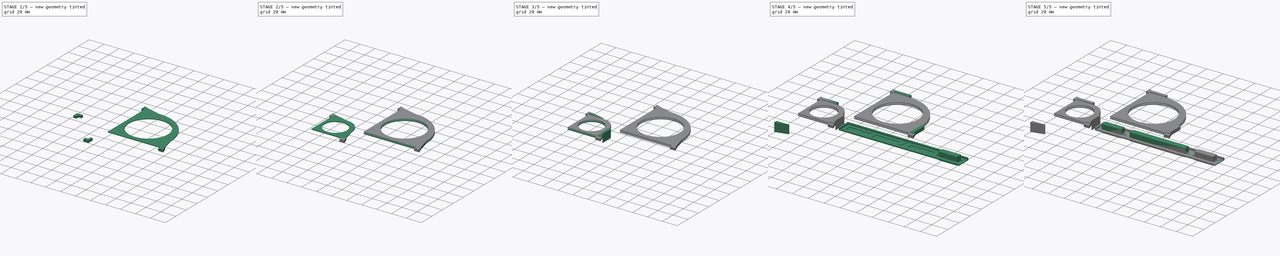
[diagram: build sequence overview — one tinted view per stage of 5, left to right]
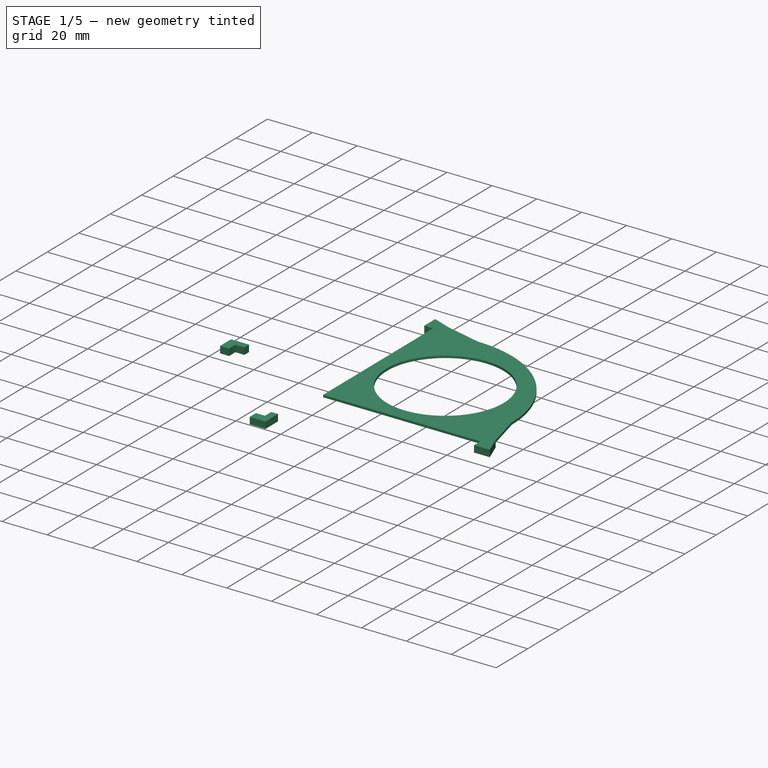
[diagram: stage 1 of 5 — iso view after this stage's code; geometry added in this stage tinted green]
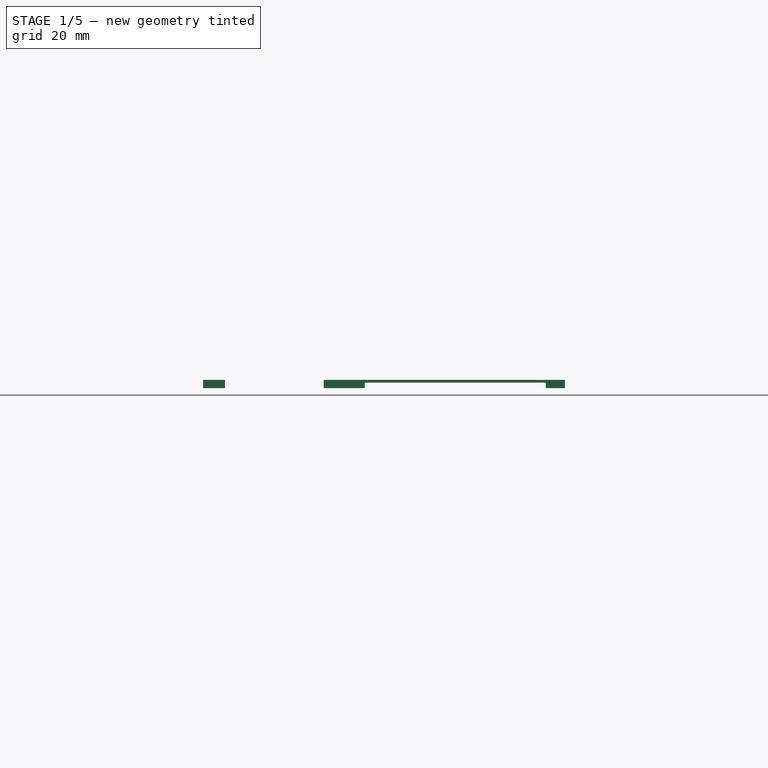
[diagram: stage 1 of 5 — front view after this stage's code; geometry added in this stage tinted green]
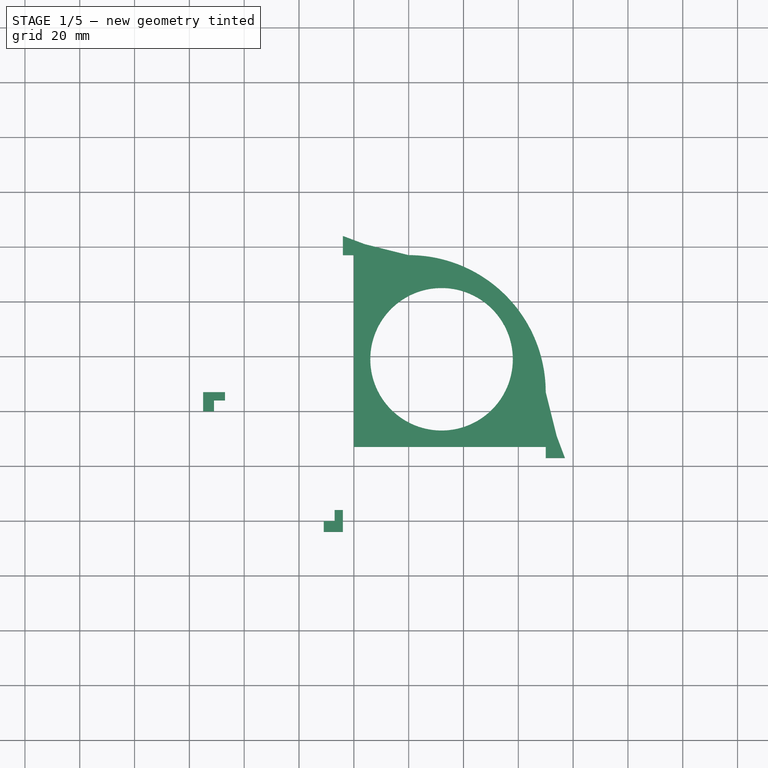
[diagram: stage 1 of 5 — top view after this stage's code; geometry added in this stage tinted green]
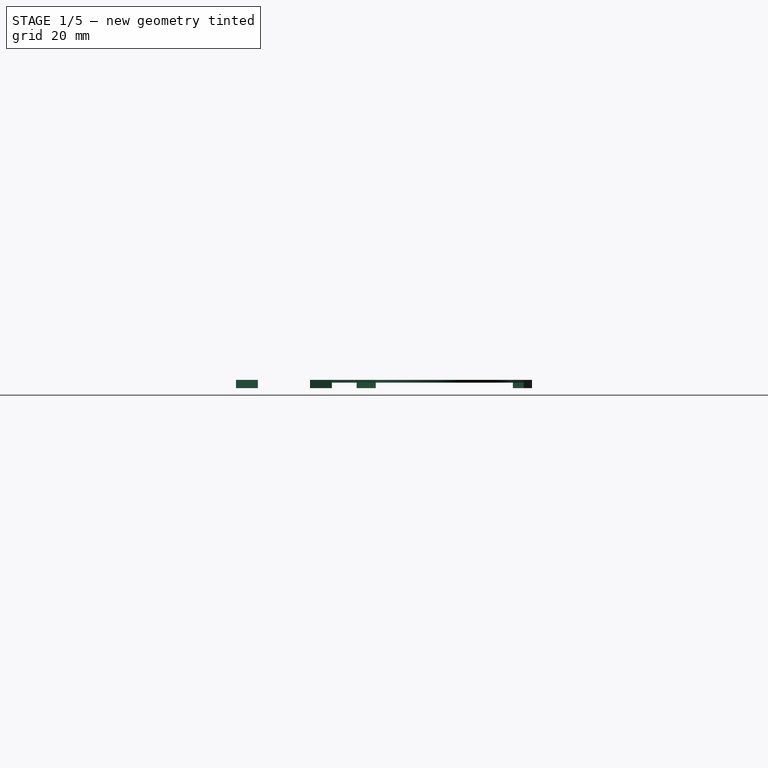
[diagram: stage 1 of 5 — right view after this stage's code; geometry added in this stage tinted green]
FCSTD DOCUMENT  (FreeCAD 0.18R4 (GitTag))
Label: marcador_cortes_vincha
License: CreativeCommons Attribution-ShareAlike
LicenseURL: http://creativecommons.org/licenses/by-sa/4.0/
objects: Part::Cut×55, Part::Box×51, Sketcher::SketchObject×18, Part::Extrusion×18, Part::MultiFuse×10, Part::Feature×10, Part::Cylinder×10
note: 172 computed .brp shape members not serialized (recipe doc carries the construction recipe); baked Part::Feature solids carry a one-line shape summary decoded from their .brp

FEATURE [Part::Box] Box041  label="Cube041"
  AttacherType = Attacher::AttachEngine3D
  Height = 3
  Length = 3
  Placement = pos=(-7,0,2) rot=(0,0,1;0rad)
  Width = 4
FEATURE [Part::Box] Box042  label="Cube042"
  AttacherType = Attacher::AttachEngine3D
  Height = 3
  Length = 7
  Placement = pos=(-11,-4,2) rot=(0,0,1;0rad)
  Width = 4
FEATURE [Part::Box] Box043  label="Cube043"
  AttacherType = Attacher::AttachEngine3D
  Height = 3
  Length = 7
  Placement = pos=(-11,-4,2) rot=(0,0,1;0rad)
  Width = 4
FEATURE [Part::Box] Box044  label="Cube044"
  AttacherType = Attacher::AttachEngine3D
  Height = 3
  Length = 3
  Placement = pos=(-7,0,2) rot=(0,0,1;0rad)
  Width = 4
FEATURE [Part::MultiFuse] Fusion004
  Placement = pos=(-51,51,7) rot=(0.707107,0.707107,0;3.14159rad)
  Shapes = -> [Box044,Box043]
FEATURE [Part::Feature] Big_Corner001_solid003  label="Big_Corner001 (Solid)003"
  shape: bbox 74 x 74 x 6 mm, 67 faces (baked)
FEATURE [Part::Cylinder] Cylinder009
  Angle = 360
  AttacherType = Attacher::AttachEngine3D
  Height = 10
  Placement = pos=(32,32,0) rot=(0,0,1;0rad)
  Radius = 26
FEATURE [Part::Box] Box046  label="Cube046"
  AttacherType = Attacher::AttachEngine3D
  Height = 2
  Length = 92
  Width = 89
FEATURE [Part::Cut] Cut046
  Base = -> Big_Corner001_solid003
  Tool = -> Cylinder009
FEATURE [Part::Cut] Cut047  label="esquina_grande002"
  Base = -> Cut046
  Placement = pos=(0,27,0) rot=(0,0,1;0rad)
  Tool = -> Box046
FEATURE [Part::Box] Box047  label="Cube047"
  AttacherType = Attacher::AttachEngine3D
  Height = 10
  Length = 80
  Placement = pos=(0,0,4) rot=(0,0,1;0rad)
  Width = 112
FEATURE [Sketcher::SketchObject] Sketch015
  ExternalGeometry = -> [Cut047]
  MapMode = 5
  Placement = pos=(0,27,6) rot=(0,0,1;0rad)
  Support = -> [Cut047]
  sketch-geometry (3):
    g0: LineSegment StartX=70 StartY=20 StartZ=0 EndX=74 EndY=20 EndZ=0
    g1: LineSegment StartX=74 StartY=20 StartZ=0 EndX=74 EndY=4 EndZ=0
    g2: LineSegment StartX=74 StartY=4 StartZ=0 EndX=70 EndY=20 EndZ=0
  constraints (8):
    c: Horizontal(g0)
    c: Coincident(g0,g1)
    c: Vertical(g1)
    c: Coincident(g1,g2)
    c: Coincident(g2,g0)
    c: Coincident(g0,g-3)
    c: DistanceY(g-4,g1) = 4
    c: PointOnObject(g1,g-4)
FEATURE [Part::Extrusion] Extrude012
  Base = -> Sketch015
  Dir = (0,0,1)
  DirMode = 2
  FaceMakerClass = Part::FaceMakerBullseye
  LengthFwd = -10
  LengthRev = 0
  Solid = true
  Symmetric = false
FEATURE [Part::Cut] Cut049
  Base = -> Cut047
  Tool = -> Extrude012
FEATURE [Sketcher::SketchObject] Sketch016
  ExternalGeometry = -> [Cut047]
  MapMode = 5
  Placement = pos=(0,27,6) rot=(0,0,1;0rad)
  Support = -> [Cut047]
  sketch-geometry (3):
    g0: LineSegment StartX=20 StartY=70 StartZ=0 EndX=20 EndY=74 EndZ=0
    g1: LineSegment StartX=20 StartY=74 StartZ=0 EndX=4 EndY=74 EndZ=0
    g2: LineSegment StartX=4 StartY=74 StartZ=0 EndX=20 EndY=70 EndZ=0
  constraints (8):
    c: Vertical(g0)
    c: Coincident(g0,g1)
    c: Horizontal(g1)
    c: Coincident(g1,g2)
    c: Coincident(g2,g0)
    c: Coincident(g0,g-3)
    c: DistanceX(g-4,g1) = 4
    c: PointOnObject(g1,g-4)
FEATURE [Part::Extrusion] Extrude013
  Base = -> Sketch016
  Dir = (0,0,1)
  DirMode = 2
  FaceMakerClass = Part::FaceMakerBullseye
  LengthFwd = -10
  LengthRev = 0
  Solid = true
  Symmetric = false
FEATURE [Part::Cut] Cut045
  Base = -> Cut049
  Tool = -> Extrude013
FEATURE [Part::Cut] Cut048  label="corte_grande_tapa001"
  Base = -> Cut045
  Placement = pos=(0,0,2) rot=(0,0,1;0rad)
  Tool = -> Box047
FEATURE [Part::Box] Box048  label="Cube048"
  AttacherType = Attacher::AttachEngine3D
  Height = 10
  Length = 95
  Placement = pos=(0,0,5) rot=(0,0,1;0rad)
  Width = 149
FEATURE [Part::Cut] Cut050
  Base = -> Cut048
  Tool = -> Box048
FEATURE [Part::Box] Box049  label="Cube049"
  AttacherType = Attacher::AttachEngine3D
  Height = 3
  Length = 7
  Placement = pos=(-11,-4,2) rot=(0,0,1;0rad)
  Width = 4
FEATURE [Part::Box] Box050  label="Cube050"
  AttacherType = Attacher::AttachEngine3D
  Height = 3
  Length = 3
  Placement = pos=(-7,0,2) rot=(0,0,1;0rad)
  Width = 4
FEATURE [Part::MultiFuse] Fusion006
  Placement = pos=(0,108,7) rot=(0.707107,0.707107,0;3.14159rad)
  Shapes = -> [Box050,Box049]
FEATURE [Part::Box] Box051  label="Cube051"
  AttacherType = Attacher::AttachEngine3D
  Height = 3
  Length = 7
  Placement = pos=(-11,-4,2) rot=(0,0,1;0rad)
  Width = 4
FEATURE [Part::Box] Box052  label="Cube052"
  AttacherType = Attacher::AttachEngine3D
  Height = 3
  Length = 3
  Placement = pos=(-7,0,2) rot=(0,0,1;0rad)
  Width = 4
FEATURE [Part::MultiFuse] Fusion007
  Placement = pos=(81,27,0) rot=(0,0,1;0rad)
  Shapes = -> [Box052,Box051]
FEATURE [Part::MultiFuse] Fusion008
  Shapes = -> [Cut050,Fusion006]
FEATURE [Part::MultiFuse] Fusion009  label="corte_grande_tapa"
  Shapes = -> [Fusion008,Fusion007]
FEATURE [Part::Extrusion] Extrude017
  Base = -> Sketch020
  Dir = (0,0,1)
  DirMode = 2
  FaceMakerClass = Part::FaceMakerBullseye
  LengthFwd = -10
  LengthRev = 0
  Solid = true
  Symmetric = false
FEATURE [Part::Cut] Cut053
  Base = -> Fusion009
  Tool = -> Extrude017
FEATURE [Part::Extrusion] Extrude018
  Base = -> Sketch019
  Dir = (0,0,1)
  DirMode = 2
  FaceMakerClass = Part::FaceMakerBullseye
  LengthFwd = -10
  LengthRev = 0
  Solid = true
  Symmetric = false
FEATURE [Part::Cut] Cut054  label="corte_grande_tapa_1"
  Base = -> Cut053
  Tool = -> Extrude018
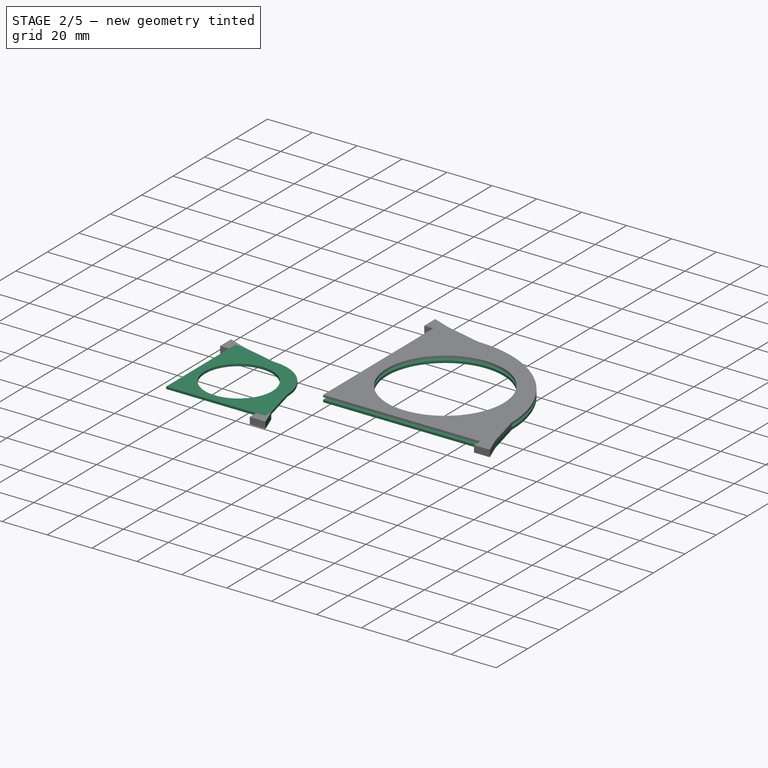
[diagram: stage 2 of 5 — iso view after this stage's code; geometry added in this stage tinted green]
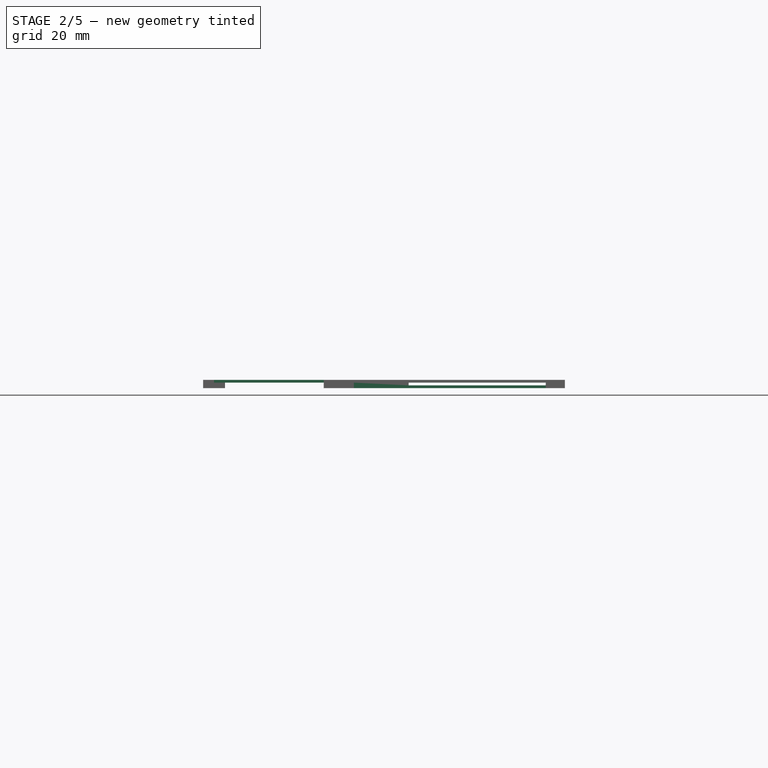
[diagram: stage 2 of 5 — front view after this stage's code; geometry added in this stage tinted green]
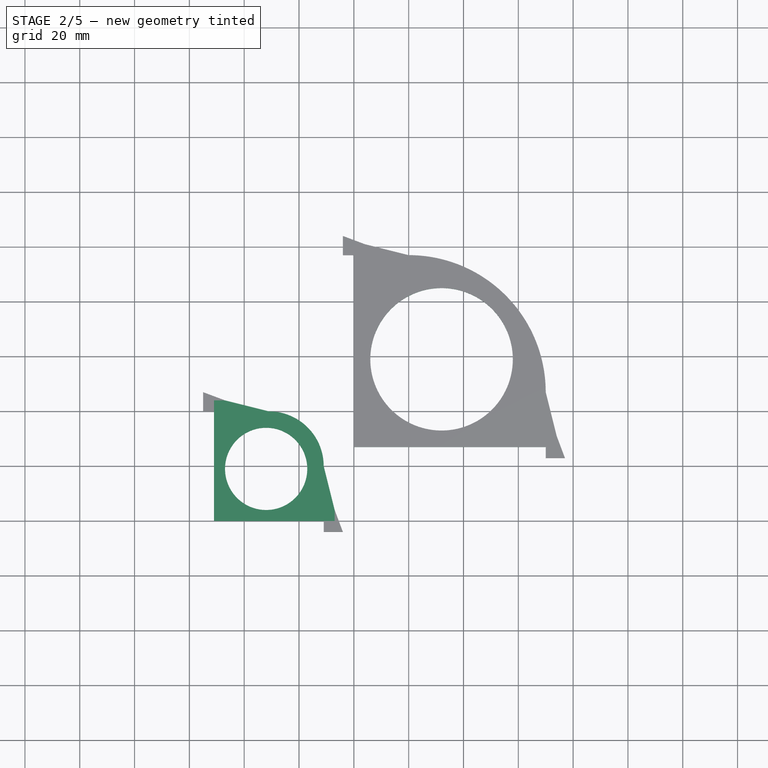
[diagram: stage 2 of 5 — top view after this stage's code; geometry added in this stage tinted green]
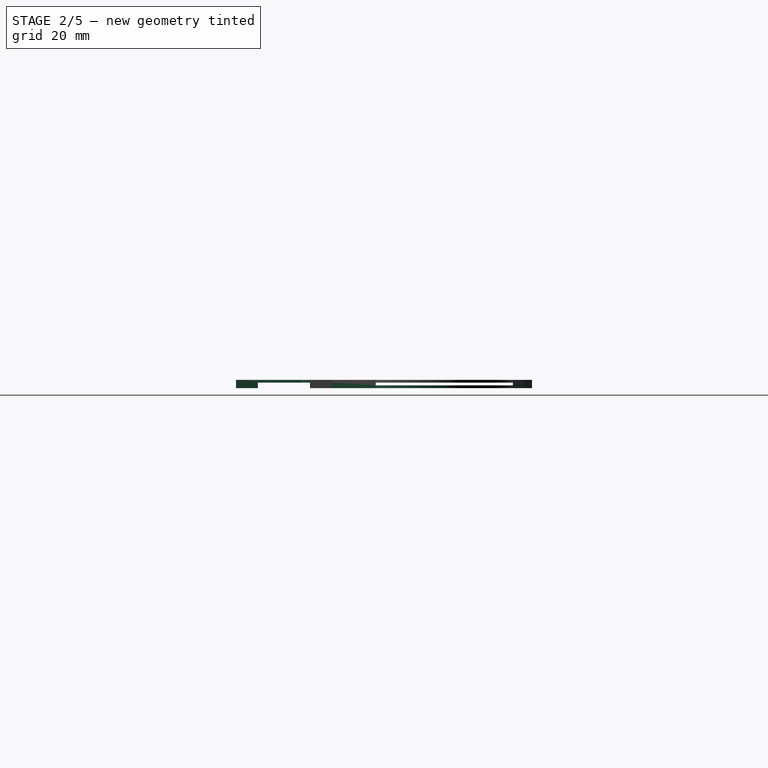
[diagram: stage 2 of 5 — right view after this stage's code; geometry added in this stage tinted green]
FEATURE [Part::Feature] Big_Corner001_solid002  label="Big_Corner001 (Solid)002"
  shape: bbox 74 x 74 x 6 mm, 67 faces (baked)
FEATURE [Part::Cylinder] Cylinder003
  Angle = 360
  AttacherType = Attacher::AttachEngine3D
  Height = 10
  Placement = pos=(32,32,0) rot=(0,0,1;0rad)
  Radius = 26
FEATURE [Part::Box] Box032  label="Cube032"
  AttacherType = Attacher::AttachEngine3D
  Height = 2
  Length = 92
  Width = 89
FEATURE [Part::Cut] Cut022
  Base = -> Big_Corner001_solid002
  Tool = -> Cylinder003
FEATURE [Part::Cut] Cut021  label="esquina_grande001"
  Base = -> Cut022
  Placement = pos=(0,27,0) rot=(0,0,1;0rad)
  Tool = -> Box032
FEATURE [Part::Feature] Small_Corner001_solid007  label="Small_Corner001 (Solid)007"
  shape: bbox 44 x 44 x 6 mm, 57 faces (baked)
FEATURE [Part::Box] Box038  label="Cube038"
  AttacherType = Attacher::AttachEngine3D
  Height = 2
  Length = 67
  Width = 53
FEATURE [Part::Cylinder] Cylinder008
  Angle = 360
  AttacherType = Attacher::AttachEngine3D
  Height = 10
  Placement = pos=(19,19,-2) rot=(0,0,1;0rad)
  Radius = 15
FEATURE [Part::Cut] Cut037
  Base = -> Small_Corner001_solid007
  Tool = -> Cylinder008
FEATURE [Part::Cut] Cut036  label="esquina_chica006"
  Base = -> Cut037
  Placement = pos=(-51,0,0) rot=(0,0,1;0rad)
  Tool = -> Box038
FEATURE [Sketcher::SketchObject] Sketch012
  ExternalGeometry = -> [Cut036]
  MapMode = 5
  Placement = pos=(-51,0,6) rot=(0,0,1;0rad)
  Support = -> [Cut036]
  sketch-geometry (3):
    g0: LineSegment StartX=40 StartY=20 StartZ=0 EndX=44 EndY=4 EndZ=0
    g1: LineSegment StartX=44 StartY=4 StartZ=0 EndX=44 EndY=20 EndZ=0
    g2: LineSegment StartX=44 StartY=20 StartZ=0 EndX=40 EndY=20 EndZ=0
  constraints (7):
    c: Coincident(g-3,g0)
    c: Vertical(g1)
    c: Coincident(g1,g2)
    c: Coincident(g2,g0)
    c: Coincident(g0,g1)
    c: PointOnObject(g0,g-4)
    c: DistanceY(g-4,g0) = 4
FEATURE [Part::Extrusion] Extrude008
  Base = -> Sketch012
  Dir = (0,0,1)
  DirMode = 2
  FaceMakerClass = Part::FaceMakerBullseye
  LengthFwd = 1
  LengthRev = 10
  Solid = true
  Symmetric = false
FEATURE [Part::Cut] Cut038
  Base = -> Cut036
  Tool = -> Extrude008
FEATURE [Sketcher::SketchObject] Sketch011
  ExternalGeometry = -> [Cut038]
  MapMode = 5
  Placement = pos=(0,0,6) rot=(0,0,1;0rad)
  Support = -> [Cut038]
  sketch-geometry (3):
    g0: LineSegment StartX=-31 StartY=40 StartZ=0 EndX=-47 EndY=44 EndZ=0
    g1: LineSegment StartX=-47 StartY=44 StartZ=0 EndX=-31 EndY=44 EndZ=0
    g2: LineSegment StartX=-31 StartY=44 StartZ=0 EndX=-31 EndY=40 EndZ=0
  constraints (8):
    c: Coincident(g0,g1)
    c: Horizontal(g1)
    c: Coincident(g1,g2)
    c: Coincident(g2,g0)
    c: Vertical(g2)
    c: Coincident(g0,g-4)
    c: PointOnObject(g0,g-3)
    c: DistanceX(g-3,g0) = 4
FEATURE [Part::Extrusion] Extrude009
  Base = -> Sketch011
  Dir = (0,0,1)
  DirMode = 2
  FaceMakerClass = Part::FaceMakerBullseye
  LengthFwd = -10
  LengthRev = 0
  Solid = true
  Symmetric = false
FEATURE [Part::Cut] Cut039
  Base = -> Cut038
  Tool = -> Extrude009
FEATURE [Part::Box] Box039  label="Cube039"
  AttacherType = Attacher::AttachEngine3D
  Height = 10
  Length = 50
  Placement = pos=(-52,0,4) rot=(0,0,1;0rad)
  Width = 48
FEATURE [Part::Cut] Cut040  label="corte_chico_tapa"
  Base = -> Cut039
  Tool = -> Box039
FEATURE [Part::Box] Box040  label="Cube040"
  AttacherType = Attacher::AttachEngine3D
  Height = 10
  Length = 50
  Placement = pos=(-52,0,3) rot=(0,0,1;0rad)
  Width = 48
FEATURE [Part::Cut] Cut041
  Base = -> Cut040
  Placement = pos=(0,0,2) rot=(0,0,1;0rad)
  Tool = -> Box040
FEATURE [Part::MultiFuse] Fusion002
  Shapes = -> [Box041,Box042]
FEATURE [Part::MultiFuse] Fusion003
  Shapes = -> [Cut041,Fusion002]
FEATURE [Part::MultiFuse] Fusion005  label="corte_chico_tapa001"
  Shapes = -> [Fusion003,Fusion004]
FEATURE [Sketcher::SketchObject] Sketch013
  ExternalGeometry = -> [Cut021]
  MapMode = 5
  Placement = pos=(0,27,6) rot=(0,0,1;0rad)
  Support = -> [Cut021]
  sketch-geometry (3):
    g0: LineSegment StartX=70 StartY=20 StartZ=0 EndX=74 EndY=20 EndZ=0
    g1: LineSegment StartX=74 StartY=20 StartZ=0 EndX=74 EndY=4 EndZ=0
    g2: LineSegment StartX=74 StartY=4 StartZ=0 EndX=70 EndY=20 EndZ=0
  constraints (8):
    c: Horizontal(g0)
    c: Coincident(g0,g1)
    c: Vertical(g1)
    c: Coincident(g1,g2)
    c: Coincident(g2,g0)
    c: Coincident(g0,g-3)
    c: DistanceY(g-4,g1) = 4
    c: PointOnObject(g1,g-4)
FEATURE [Sketcher::SketchObject] Sketch014
  ExternalGeometry = -> [Cut021]
  MapMode = 5
  Placement = pos=(0,27,6) rot=(0,0,1;0rad)
  Support = -> [Cut021]
  sketch-geometry (3):
    g0: LineSegment StartX=20 StartY=70 StartZ=0 EndX=20 EndY=74 EndZ=0
    g1: LineSegment StartX=20 StartY=74 StartZ=0 EndX=4 EndY=74 EndZ=0
    g2: LineSegment StartX=4 StartY=74 StartZ=0 EndX=20 EndY=70 EndZ=0
  constraints (8):
    c: Vertical(g0)
    c: Coincident(g0,g1)
    c: Horizontal(g1)
    c: Coincident(g1,g2)
    c: Coincident(g2,g0)
    c: Coincident(g0,g-3)
    c: DistanceX(g-4,g1) = 4
    c: PointOnObject(g1,g-4)
FEATURE [Part::Extrusion] Extrude010
  Base = -> Sketch013
  Dir = (0,0,1)
  DirMode = 2
  FaceMakerClass = Part::FaceMakerBullseye
  LengthFwd = -10
  LengthRev = 0
  Solid = true
  Symmetric = false
FEATURE [Part::Extrusion] Extrude011
  Base = -> Sketch014
  Dir = (0,0,1)
  DirMode = 2
  FaceMakerClass = Part::FaceMakerBullseye
  LengthFwd = -10
  LengthRev = 0
  Solid = true
  Symmetric = false
FEATURE [Part::Cut] Cut042
  Base = -> Cut021
  Tool = -> Extrude010
FEATURE [Part::Cut] Cut043
  Base = -> Cut042
  Tool = -> Extrude011
FEATURE [Part::Box] Box045  label="Cube045"
  AttacherType = Attacher::AttachEngine3D
  Height = 10
  Length = 80
  Placement = pos=(0,0,4) rot=(0,0,1;0rad)
  Width = 112
FEATURE [Part::Cut] Cut044  label="corte_grande_base"
  Base = -> Cut043
  Tool = -> Box045
FEATURE [Sketcher::SketchObject] Sketch017
  ExternalGeometry = -> [Fusion005]
  MapMode = 5
  Placement = pos=(0,0,5) rot=(0,0,1;0rad)
  Support = -> [Fusion005]
  sketch-geometry (3):
    g0: LineSegment StartX=-47 StartY=44 StartZ=0 EndX=-55 EndY=47 EndZ=0
    g1: LineSegment StartX=-47 StartY=47 StartZ=0 EndX=-47 EndY=44 EndZ=0
    g2: LineSegment StartX=-55 StartY=47 StartZ=0 EndX=-47 EndY=47 EndZ=0
  constraints (7):
    c: Coincident(g0,g2)
    c: Horizontal(g2)
    c: Vertical(g1)
    c: Coincident(g1,g2)
    c: Coincident(g0,g1)
    c: Coincident(g0,g-4)
    c: Coincident(g0,g-3)
FEATURE [Sketcher::SketchObject] Sketch018
  ExternalGeometry = -> [Fusion005]
  MapMode = 5
  Placement = pos=(0,0,5) rot=(0,0,1;0rad)
  Support = -> [Fusion005]
  sketch-geometry (3):
    g0: LineSegment StartX=-7 StartY=4 StartZ=0 EndX=-4 EndY=-4 EndZ=0
    g1: LineSegment StartX=-4 StartY=4 StartZ=0 EndX=-7 EndY=4 EndZ=0
    g2: LineSegment StartX=-4 StartY=-4 StartZ=0 EndX=-4 EndY=4 EndZ=0
  constraints (7):
    c: Coincident(g0,g1)
    c: Coincident(g1,g2)
    c: Horizontal(g1)
    c: Vertical(g2)
    c: Coincident(g0,g2)
    c: Coincident(g0,g-4)
    c: Coincident(g0,g-3)
FEATURE [Sketcher::SketchObject] Sketch019
  ExternalGeometry = -> [Fusion009]
  MapMode = 5
  Placement = pos=(0,0,5) rot=(0,0,1;0rad)
  Support = -> [Fusion009]
  sketch-geometry (3):
    g0: LineSegment StartX=4 StartY=101 StartZ=0 EndX=-4 EndY=104 EndZ=0
    g1: LineSegment StartX=-4 StartY=104 StartZ=0 EndX=4 EndY=104 EndZ=0
    g2: LineSegment StartX=4 StartY=104 StartZ=0 EndX=4 EndY=101 EndZ=0
  constraints (7):
    c: Coincident(g2,g0)
    c: Coincident(g1,g2)
    c: Vertical(g2)
    c: Horizontal(g1)
    c: Coincident(g0,g1)
    c: Coincident(g0,g-4)
    c: Coincident(g0,g-5)
FEATURE [Sketcher::SketchObject] Sketch020
  ExternalGeometry = -> [Fusion009]
  MapMode = 5
  Placement = pos=(0,0,5) rot=(0,0,1;0rad)
  Support = -> [Fusion009]
  sketch-geometry (3):
    g0: LineSegment StartX=77 StartY=23 StartZ=0 EndX=74 EndY=31 EndZ=0
    g1: LineSegment StartX=74 StartY=31 StartZ=0 EndX=77 EndY=31 EndZ=0
    g2: LineSegment StartX=77 StartY=31 StartZ=0 EndX=77 EndY=23 EndZ=0
  constraints (7):
    c: Coincident(g0,g1)
    c: Horizontal(g1)
    c: Coincident(g1,g2)
    c: Vertical(g2)
    c: Coincident(g0,g2)
    c: Coincident(g0,g-4)
    c: Coincident(g0,g-3)
FEATURE [Part::Extrusion] Extrude014
  Base = -> Sketch017
  Dir = (0,0,1)
  DirMode = 2
  FaceMakerClass = Part::FaceMakerBullseye
  LengthFwd = -10
  LengthRev = 0
  Solid = true
  Symmetric = false
FEATURE [Part::Extrusion] Extrude015
  Base = -> Sketch018
  Dir = (0,0,1)
  DirMode = 2
  FaceMakerClass = Part::FaceMakerBullseye
  LengthFwd = -10
  LengthRev = 0
  Solid = true
  Symmetric = false
FEATURE [Part::Cut] Cut051
  Base = -> Fusion005
  Tool = -> Extrude014
FEATURE [Part::Cut] Cut052  label="corte_chico_tapa_1"
  Base = -> Cut051
  Tool = -> Extrude015
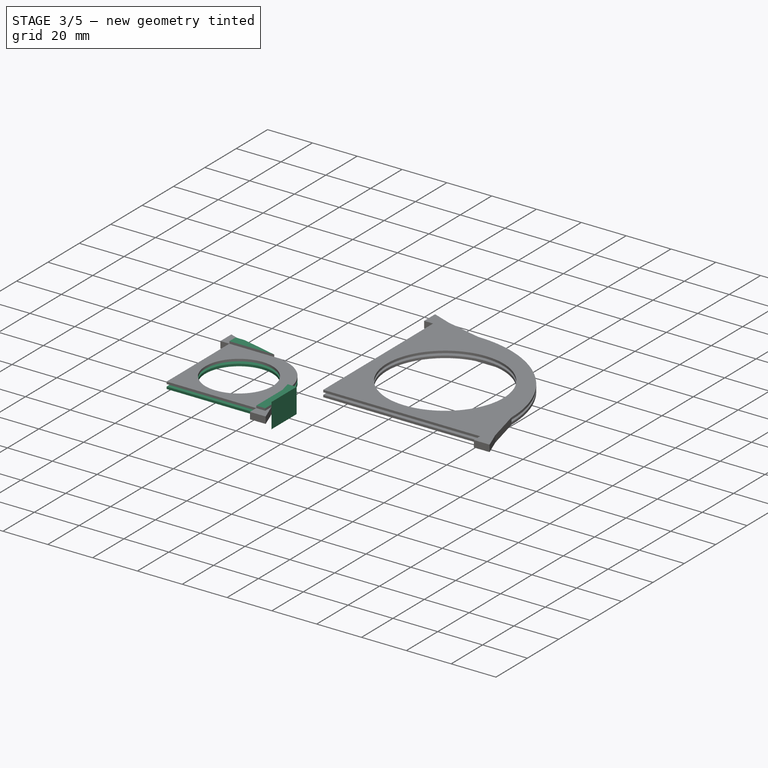
[diagram: stage 3 of 5 — iso view after this stage's code; geometry added in this stage tinted green]
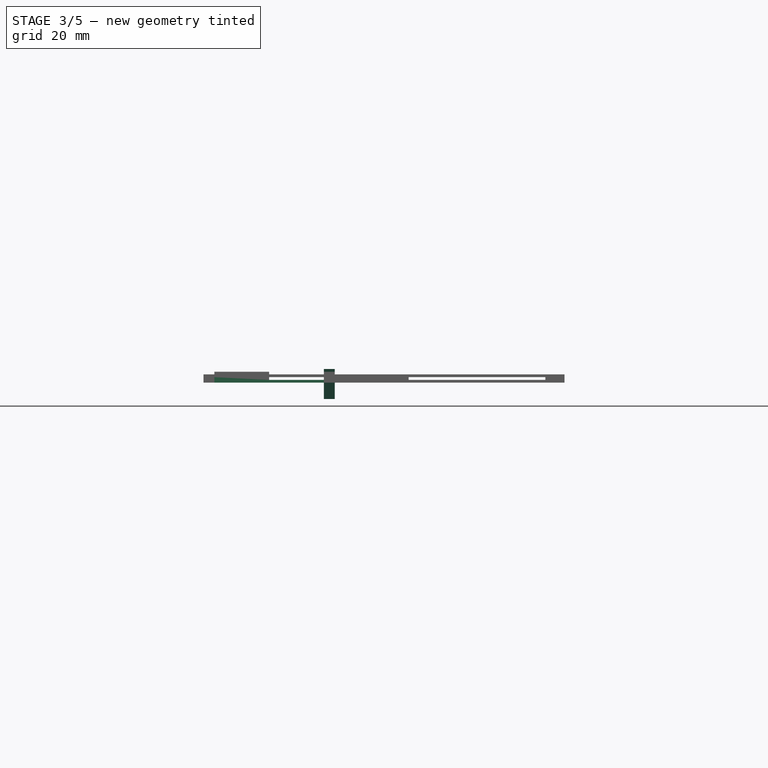
[diagram: stage 3 of 5 — front view after this stage's code; geometry added in this stage tinted green]
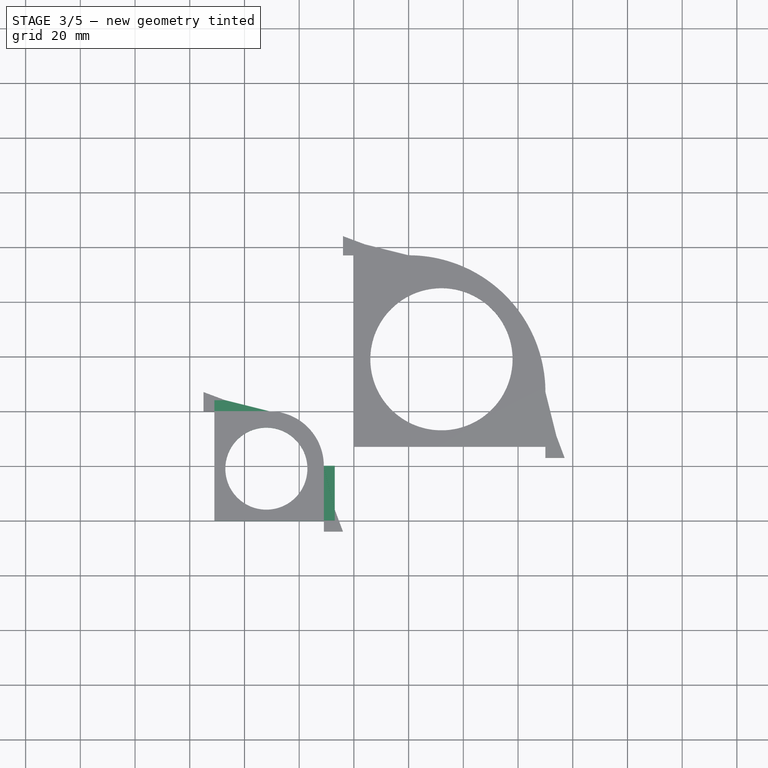
[diagram: stage 3 of 5 — top view after this stage's code; geometry added in this stage tinted green]
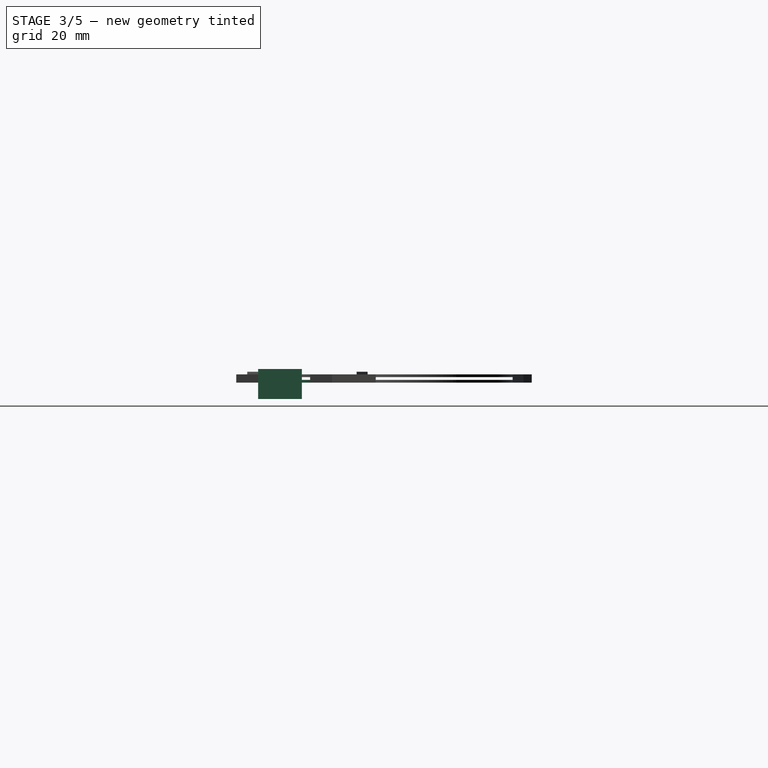
[diagram: stage 3 of 5 — right view after this stage's code; geometry added in this stage tinted green]
FEATURE [Part::Feature] Small_Corner001_solid002  label="Small_Corner001 (Solid)002"
  shape: bbox 44 x 44 x 6 mm, 57 faces (baked)
FEATURE [Part::Cylinder] Cylinder002
  Angle = 360
  AttacherType = Attacher::AttachEngine3D
  Height = 10
  Placement = pos=(19,19,-2) rot=(0,0,1;0rad)
  Radius = 15
FEATURE [Part::Box] Box031  label="Cube031"
  AttacherType = Attacher::AttachEngine3D
  Height = 2
  Length = 67
  Width = 53
FEATURE [Part::Cut] Cut019
  Base = -> Small_Corner001_solid002
  Tool = -> Cylinder002
FEATURE [Part::Cut] Cut020  label="esquina_chica001"
  Base = -> Cut019
  Placement = pos=(-51,0,0) rot=(0,0,1;0rad)
  Tool = -> Box031
FEATURE [Sketcher::SketchObject] Sketch001
  ExternalGeometry = -> [Cut020]
  MapMode = 5
  Placement = pos=(-51,0,6) rot=(0,0,1;0rad)
  Support = -> [Cut020]
  sketch-geometry (3):
    g0: LineSegment StartX=40 StartY=20 StartZ=0 EndX=44 EndY=4 EndZ=0
    g1: LineSegment StartX=44 StartY=4 StartZ=0 EndX=44 EndY=20 EndZ=0
    g2: LineSegment StartX=44 StartY=20 StartZ=0 EndX=40 EndY=20 EndZ=0
  constraints (7):
    c: Coincident(g-3,g0)
    c: Vertical(g1)
    c: Coincident(g1,g2)
    c: Coincident(g2,g0)
    c: Coincident(g0,g1)
    c: PointOnObject(g0,g-4)
    c: DistanceY(g-4,g0) = 4
FEATURE [Part::Extrusion] Extrude001
  Base = -> Sketch001
  Dir = (0,0,1)
  DirMode = 2
  FaceMakerClass = Part::FaceMakerBullseye
  LengthFwd = 1
  LengthRev = 10
  Solid = true
  Symmetric = false
FEATURE [Part::Feature] Small_Corner001_solid004  label="Small_Corner001 (Solid)004"
  shape: bbox 44 x 44 x 6 mm, 57 faces (baked)
FEATURE [Part::Box] Box034  label="Cube034"
  AttacherType = Attacher::AttachEngine3D
  Height = 2
  Length = 67
  Width = 53
FEATURE [Part::Cylinder] Cylinder005
  Angle = 360
  AttacherType = Attacher::AttachEngine3D
  Height = 10
  Placement = pos=(19,19,-2) rot=(0,0,1;0rad)
  Radius = 15
FEATURE [Part::Cut] Cut026
  Base = -> Small_Corner001_solid004
  Tool = -> Cylinder005
FEATURE [Part::Cut] Cut025  label="esquina_chica003"
  Base = -> Cut026
  Placement = pos=(-51,0,0) rot=(0,0,1;0rad)
  Tool = -> Box034
FEATURE [Sketcher::SketchObject] Sketch003
  ExternalGeometry = -> [Cut025]
  MapMode = 5
  Placement = pos=(-51,0,6) rot=(0,0,1;0rad)
  Support = -> [Cut025]
  sketch-geometry (3):
    g0: LineSegment StartX=40 StartY=20 StartZ=0 EndX=44 EndY=4 EndZ=0
    g1: LineSegment StartX=44 StartY=4 StartZ=0 EndX=44 EndY=20 EndZ=0
    g2: LineSegment StartX=44 StartY=20 StartZ=0 EndX=40 EndY=20 EndZ=0
  constraints (7):
    c: Coincident(g-3,g0)
    c: Vertical(g1)
    c: Coincident(g1,g2)
    c: Coincident(g2,g0)
    c: Coincident(g0,g1)
    c: PointOnObject(g0,g-4)
    c: DistanceY(g-4,g0) = 4
FEATURE [Part::Extrusion] Extrude003
  Base = -> Sketch003
  Dir = (0,0,1)
  DirMode = 2
  FaceMakerClass = Part::FaceMakerBullseye
  LengthFwd = 1
  LengthRev = 10
  Solid = true
  Symmetric = false
FEATURE [Part::Feature] Small_Corner001_solid005  label="Small_Corner001 (Solid)005"
  shape: bbox 44 x 44 x 6 mm, 57 faces (baked)
FEATURE [Part::Box] Box035  label="Cube035"
  AttacherType = Attacher::AttachEngine3D
  Height = 2
  Length = 67
  Width = 53
FEATURE [Part::Cylinder] Cylinder006
  Angle = 360
  AttacherType = Attacher::AttachEngine3D
  Height = 10
  Placement = pos=(19,19,-2) rot=(0,0,1;0rad)
  Radius = 15
FEATURE [Part::Cut] Cut028
  Base = -> Small_Corner001_solid005
  Tool = -> Cylinder006
FEATURE [Part::Cut] Cut027  label="esquina_chica004"
  Base = -> Cut028
  Placement = pos=(-51,0,0) rot=(0,0,1;0rad)
  Tool = -> Box035
FEATURE [Sketcher::SketchObject] Sketch004
  ExternalGeometry = -> [Cut027]
  MapMode = 5
  Placement = pos=(-51,0,6) rot=(0,0,1;0rad)
  Support = -> [Cut027]
  sketch-geometry (3):
    g0: LineSegment StartX=40 StartY=20 StartZ=0 EndX=44 EndY=4 EndZ=0
    g1: LineSegment StartX=44 StartY=4 StartZ=0 EndX=44 EndY=20 EndZ=0
    g2: LineSegment StartX=44 StartY=20 StartZ=0 EndX=40 EndY=20 EndZ=0
  constraints (7):
    c: Coincident(g-3,g0)
    c: Vertical(g1)
    c: Coincident(g1,g2)
    c: Coincident(g2,g0)
    c: Coincident(g0,g1)
    c: PointOnObject(g0,g-4)
    c: DistanceY(g-4,g0) = 4
FEATURE [Part::Extrusion] Extrude004
  Base = -> Sketch004
  Dir = (0,0,1)
  DirMode = 2
  FaceMakerClass = Part::FaceMakerBullseye
  LengthFwd = 1
  LengthRev = 10
  Solid = true
  Symmetric = false
FEATURE [Part::Cut] Cut029
  Base = -> Cut020
  Tool = -> Extrude001
FEATURE [Sketcher::SketchObject] Sketch008
  ExternalGeometry = -> [Cut029]
  MapMode = 5
  Placement = pos=(0,0,6) rot=(0,0,1;0rad)
  Support = -> [Cut029]
  sketch-geometry (3):
    g0: LineSegment StartX=-31 StartY=40 StartZ=0 EndX=-47 EndY=44 EndZ=0
    g1: LineSegment StartX=-47 StartY=44 StartZ=0 EndX=-31 EndY=44 EndZ=0
    g2: LineSegment StartX=-31 StartY=44 StartZ=0 EndX=-31 EndY=40 EndZ=0
  constraints (8):
    c: Coincident(g0,g1)
    c: Horizontal(g1)
    c: Coincident(g1,g2)
    c: Coincident(g2,g0)
    c: Vertical(g2)
    c: Coincident(g0,g-4)
    c: PointOnObject(g0,g-3)
    c: DistanceX(g-3,g0) = 4
FEATURE [Part::Extrusion] Extrude005
  Base = -> Sketch008
  Dir = (0,0,1)
  DirMode = 2
  FaceMakerClass = Part::FaceMakerBullseye
  LengthFwd = -10
  LengthRev = 0
  Solid = true
  Symmetric = false
FEATURE [Part::Cut] Cut030
  Base = -> Cut029
  Tool = -> Extrude005
FEATURE [Part::Feature] Small_Corner001_solid006  label="Small_Corner001 (Solid)006"
  shape: bbox 44 x 44 x 6 mm, 57 faces (baked)
FEATURE [Part::Box] Box036  label="Cube036"
  AttacherType = Attacher::AttachEngine3D
  Height = 2
  Length = 67
  Width = 53
FEATURE [Part::Cylinder] Cylinder007
  Angle = 360
  AttacherType = Attacher::AttachEngine3D
  Height = 10
  Placement = pos=(19,19,-2) rot=(0,0,1;0rad)
  Radius = 15
FEATURE [Part::Cut] Cut032
  Base = -> Small_Corner001_solid006
  Tool = -> Cylinder007
FEATURE [Part::Cut] Cut031  label="esquina_chica005"
  Base = -> Cut032
  Placement = pos=(-51,0,0) rot=(0,0,1;0rad)
  Tool = -> Box036
FEATURE [Sketcher::SketchObject] Sketch010
  ExternalGeometry = -> [Cut031]
  MapMode = 5
  Placement = pos=(-51,0,6) rot=(0,0,1;0rad)
  Support = -> [Cut031]
  sketch-geometry (3):
    g0: LineSegment StartX=40 StartY=20 StartZ=0 EndX=44 EndY=4 EndZ=0
    g1: LineSegment StartX=44 StartY=4 StartZ=0 EndX=44 EndY=20 EndZ=0
    g2: LineSegment StartX=44 StartY=20 StartZ=0 EndX=40 EndY=20 EndZ=0
  constraints (7):
    c: Coincident(g-3,g0)
    c: Vertical(g1)
    c: Coincident(g1,g2)
    c: Coincident(g2,g0)
    c: Coincident(g0,g1)
    c: PointOnObject(g0,g-4)
    c: DistanceY(g-4,g0) = 4
FEATURE [Part::Extrusion] Extrude006
  Base = -> Sketch010
  Dir = (0,0,1)
  DirMode = 2
  FaceMakerClass = Part::FaceMakerBullseye
  LengthFwd = 1
  LengthRev = 10
  Solid = true
  Symmetric = false
FEATURE [Part::Cut] Cut033
  Base = -> Cut031
  Tool = -> Extrude006
FEATURE [Sketcher::SketchObject] Sketch009
  ExternalGeometry = -> [Cut033]
  MapMode = 5
  Placement = pos=(0,0,6) rot=(0,0,1;0rad)
  Support = -> [Cut033]
  sketch-geometry (3):
    g0: LineSegment StartX=-31 StartY=40 StartZ=0 EndX=-47 EndY=44 EndZ=0
    g1: LineSegment StartX=-47 StartY=44 StartZ=0 EndX=-31 EndY=44 EndZ=0
    g2: LineSegment StartX=-31 StartY=44 StartZ=0 EndX=-31 EndY=40 EndZ=0
  constraints (8):
    c: Coincident(g0,g1)
    c: Horizontal(g1)
    c: Coincident(g1,g2)
    c: Coincident(g2,g0)
    c: Vertical(g2)
    c: Coincident(g0,g-4)
    c: PointOnObject(g0,g-3)
    c: DistanceX(g-3,g0) = 4
FEATURE [Part::Extrusion] Extrude007
  Base = -> Sketch009
  Dir = (0,0,1)
  DirMode = 2
  FaceMakerClass = Part::FaceMakerBullseye
  LengthFwd = -10
  LengthRev = 0
  Solid = true
  Symmetric = false
FEATURE [Part::Cut] Cut034
  Base = -> Cut033
  Tool = -> Extrude007
FEATURE [Part::Box] Box037  label="Cube037"
  AttacherType = Attacher::AttachEngine3D
  Height = 10
  Length = 50
  Placement = pos=(-52,0,4) rot=(0,0,1;0rad)
  Width = 48
FEATURE [Part::Cut] Cut035  label="corte_chico_base"
  Base = -> Cut030
  Tool = -> Box037
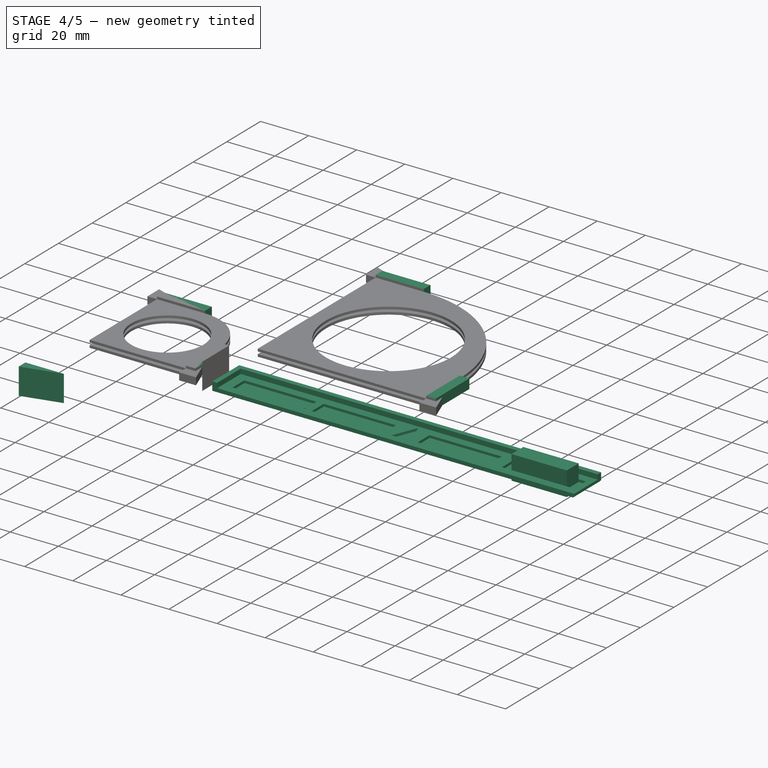
[diagram: stage 4 of 5 — iso view after this stage's code; geometry added in this stage tinted green]
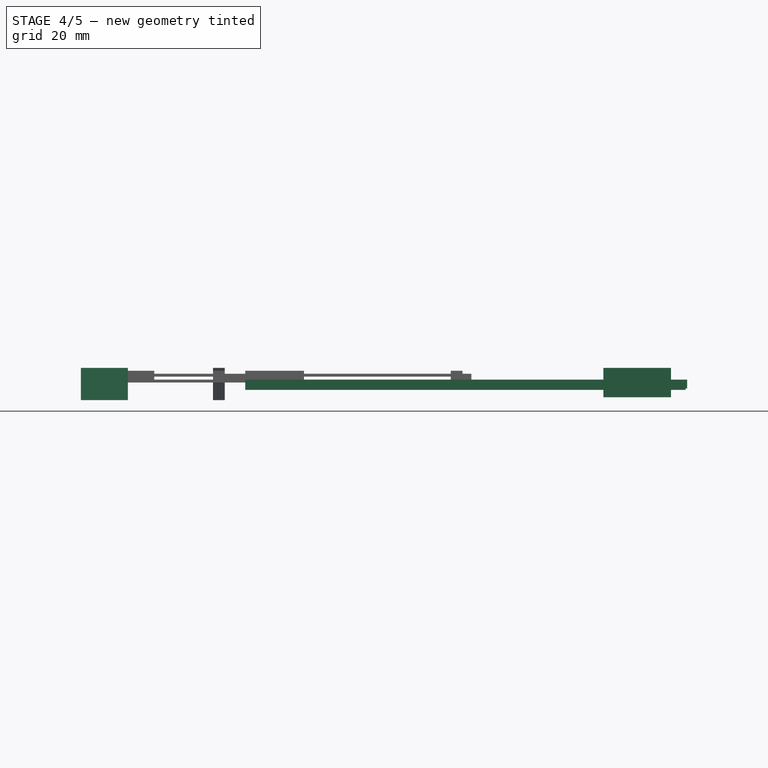
[diagram: stage 4 of 5 — front view after this stage's code; geometry added in this stage tinted green]
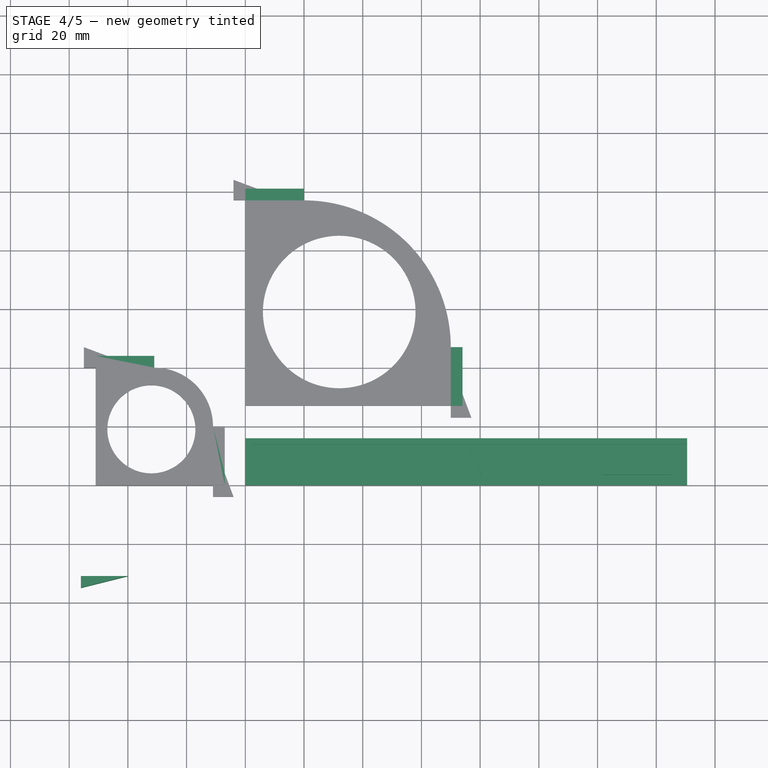
[diagram: stage 4 of 5 — top view after this stage's code; geometry added in this stage tinted green]
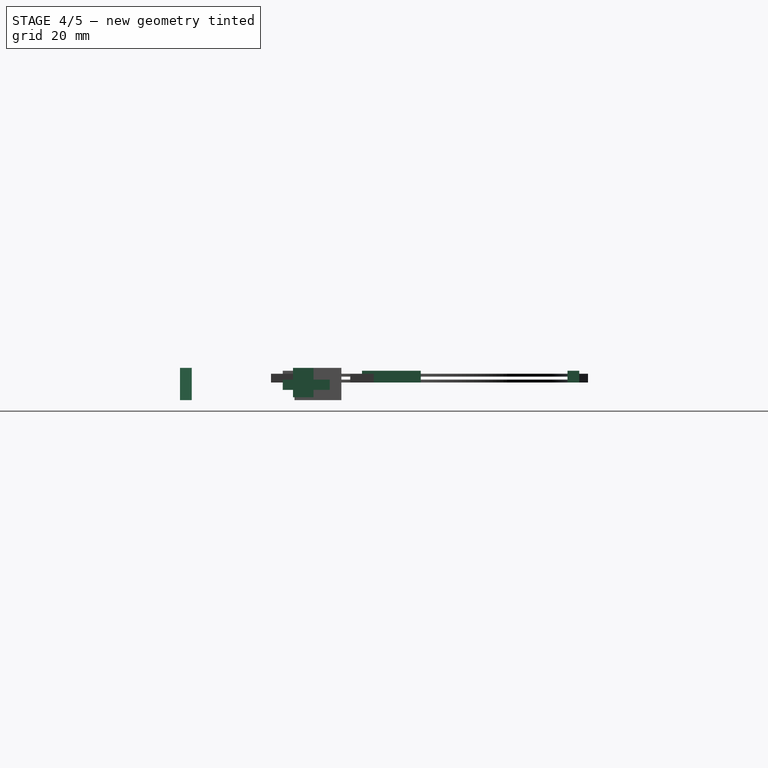
[diagram: stage 4 of 5 — right view after this stage's code; geometry added in this stage tinted green]
FEATURE [Part::Box] Box014  label="Cube014"
  AttacherType = Attacher::AttachEngine3D
  Height = 3
  Length = 150.5
  Width = 16
FEATURE [Part::Box] Box019  label="Cube019"
  AttacherType = Attacher::AttachEngine3D
  Height = 2
  Length = 148.5
  Placement = pos=(2,0,1) rot=(0,0,1;0rad)
  Width = 14
FEATURE [Part::Box] Box020  label="Cube020"
  AttacherType = Attacher::AttachEngine3D
  Height = 10
  Length = 30
  Placement = pos=(6,3.5,-3) rot=(0,0,1;0rad)
  Width = 7
FEATURE [Part::Box] Box024  label="Cube024"
  AttacherType = Attacher::AttachEngine3D
  Height = 1
  Length = 1
  Placement = pos=(34.5,1.2,0) rot=(0,0,1;0rad)
  Width = 3
FEATURE [Part::Box] Box025  label="Cube025"
  AttacherType = Attacher::AttachEngine3D
  Height = 0.5
  Length = 150
  Placement = pos=(0,0,-0.5) rot=(0,0,1;0rad)
  Width = 16
FEATURE [Part::Box] Box018  label="Cube018"
  AttacherType = Attacher::AttachEngine3D
  Height = 10
  Length = 23
  Placement = pos=(122,3.5,-3) rot=(0,0,1;0rad)
  Width = 7
FEATURE [Part::Cut] Cut009
  Base = -> Box014
  Tool = -> Box019
FEATURE [Sketcher::SketchObject] Sketch
  MapMode = 5
  Placement = pos=(0,0,1) rot=(0,0,1;0rad)
  Support = -> [Cut009]
  sketch-geometry (3):
    g0: LineSegment StartX=76.5 StartY=12 StartZ=0 EndX=72.4597 EndY=2 EndZ=0
    g1: LineSegment StartX=72.4597 StartY=2 StartZ=0 EndX=80.5403 EndY=2 EndZ=0
    g2: LineSegment StartX=80.5403 StartY=2 StartZ=0 EndX=76.5 EndY=12 EndZ=0
  constraints (9):
    c: Coincident(g0,g1)
    c: Horizontal(g1)
    c: Coincident(g1,g2)
    c: Coincident(g0,g2)
    c: Angle(g1,g0) = 1.18682
    c: Angle(g2,g1) = 1.18682
    c: DistanceX(g-1,g0) = 76.5
    c: DistanceY(g-1,g0) = 12
    c: DistanceY(g-1,g0) = 2
FEATURE [Part::Extrusion] Extrude
  Base = -> Sketch
  Dir = (0,0,1)
  DirMode = 2
  FaceMakerClass = Part::FaceMakerBullseye
  LengthFwd = 4
  LengthRev = 0
  Placement = pos=(0,1,-2.3) rot=(0,0,1;0rad)
  Solid = true
  Symmetric = false
FEATURE [Part::Cut] Cut010
  Base = -> Cut009
  Tool = -> Extrude
FEATURE [Part::Box] Box026  label="Cube026"
  AttacherType = Attacher::AttachEngine3D
  Height = 10
  Length = 30
  Placement = pos=(39,3.5,-3) rot=(0,0,1;0rad)
  Width = 7
FEATURE [Part::Box] Box027  label="Cube027"
  AttacherType = Attacher::AttachEngine3D
  Height = 10
  Length = 30
  Placement = pos=(83,3.5,-3) rot=(0,0,1;0rad)
  Width = 7
FEATURE [Part::Box] Box028  label="Cube028"
  AttacherType = Attacher::AttachEngine3D
  Height = 10
  Length = 30
  Placement = pos=(118,3.5,-3) rot=(0,0,1;0rad)
  Width = 7
FEATURE [Part::Cut] Cut011
  Base = -> Cut010
  Tool = -> Box026
FEATURE [Part::Cut] Cut012
  Base = -> Cut011
  Tool = -> Box028
FEATURE [Part::Cut] Cut013
  Base = -> Cut012
  Tool = -> Box027
FEATURE [Part::Cut] Cut014  label="marcador_cortes"
  Base = -> Cut013
  Tool = -> Box020
FEATURE [Part::Feature] Big_Corner001_solid001  label="Big_Corner001 (Solid)001"
  shape: bbox 74 x 74 x 6 mm, 67 faces (baked)
FEATURE [Part::Feature] Small_Corner001_solid001  label="Small_Corner001 (Solid)001"
  shape: bbox 44 x 44 x 6 mm, 57 faces (baked)
FEATURE [Part::Cylinder] Cylinder
  Angle = 360
  AttacherType = Attacher::AttachEngine3D
  Height = 10
  Placement = pos=(19,19,-2) rot=(0,0,1;0rad)
  Radius = 15
FEATURE [Part::Cut] Cut015
  Base = -> Small_Corner001_solid001
  Tool = -> Cylinder
FEATURE [Part::Cylinder] Cylinder001
  Angle = 360
  AttacherType = Attacher::AttachEngine3D
  Height = 10
  Placement = pos=(32,32,0) rot=(0,0,1;0rad)
  Radius = 26
FEATURE [Part::Cut] Cut017
  Base = -> Big_Corner001_solid001
  Tool = -> Cylinder001
FEATURE [Part::Box] Box029  label="Cube029"
  AttacherType = Attacher::AttachEngine3D
  Height = 2
  Length = 92
  Width = 89
FEATURE [Part::Cut] Cut016  label="esquina_grande"
  Base = -> Cut017
  Placement = pos=(0,27,0) rot=(0,0,1;0rad)
  Tool = -> Box029
FEATURE [Part::Box] Box030  label="Cube030"
  AttacherType = Attacher::AttachEngine3D
  Height = 2
  Length = 67
  Width = 53
FEATURE [Part::Cut] Cut018  label="esquina_chica"
  Base = -> Cut015
  Placement = pos=(-51,0,0) rot=(0,0,1;0rad)
  Tool = -> Box030
FEATURE [Part::Feature] Small_Corner001_solid003  label="Small_Corner001 (Solid)003"
  shape: bbox 44 x 44 x 6 mm, 57 faces (baked)
FEATURE [Part::Box] Box033  label="Cube033"
  AttacherType = Attacher::AttachEngine3D
  Height = 2
  Length = 67
  Width = 53
FEATURE [Part::Cylinder] Cylinder004
  Angle = 360
  AttacherType = Attacher::AttachEngine3D
  Height = 10
  Placement = pos=(19,19,-2) rot=(0,0,1;0rad)
  Radius = 15
FEATURE [Part::Cut] Cut024
  Base = -> Small_Corner001_solid003
  Tool = -> Cylinder004
FEATURE [Part::Cut] Cut023  label="esquina_chica002"
  Base = -> Cut024
  Placement = pos=(-51,0,0) rot=(0,0,1;0rad)
  Tool = -> Box033
FEATURE [Sketcher::SketchObject] Sketch002
  ExternalGeometry = -> [Cut023]
  MapMode = 5
  Placement = pos=(-51,0,6) rot=(0,0,1;0rad)
  Support = -> [Cut023]
  sketch-geometry (3):
    g0: LineSegment StartX=40 StartY=20 StartZ=0 EndX=44 EndY=4 EndZ=0
    g1: LineSegment StartX=44 StartY=4 StartZ=0 EndX=44 EndY=20 EndZ=0
    g2: LineSegment StartX=44 StartY=20 StartZ=0 EndX=40 EndY=20 EndZ=0
  constraints (7):
    c: Coincident(g-3,g0)
    c: Vertical(g1)
    c: Coincident(g1,g2)
    c: Coincident(g2,g0)
    c: Coincident(g0,g1)
    c: PointOnObject(g0,g-4)
    c: DistanceY(g-4,g0) = 4
FEATURE [Part::Extrusion] Extrude002
  Base = -> Sketch002
  Dir = (0,0,1)
  DirMode = 2
  FaceMakerClass = Part::FaceMakerBullseye
  LengthFwd = 1
  LengthRev = 10
  Placement = pos=(-36,-24,-9e-15) rot=(0,0,1;1.5708rad)
  Solid = true
  Symmetric = false
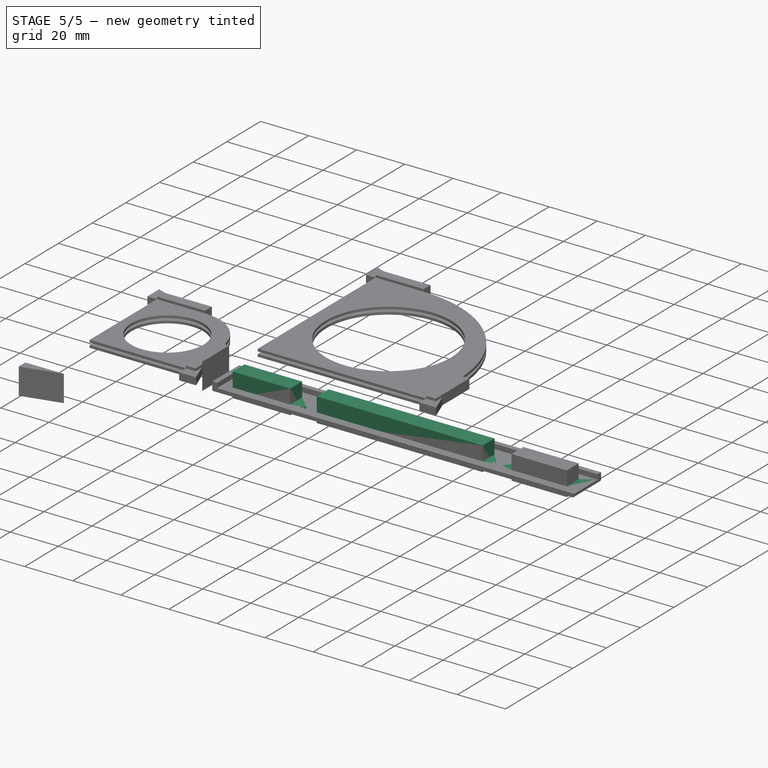
[diagram: stage 5 of 5 — iso view after this stage's code; geometry added in this stage tinted green]
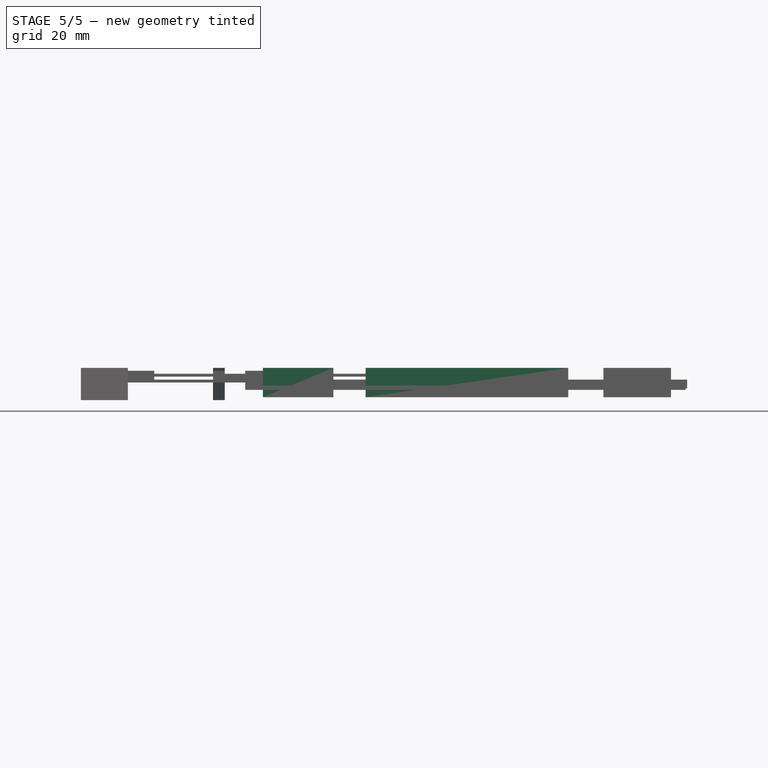
[diagram: stage 5 of 5 — front view after this stage's code; geometry added in this stage tinted green]
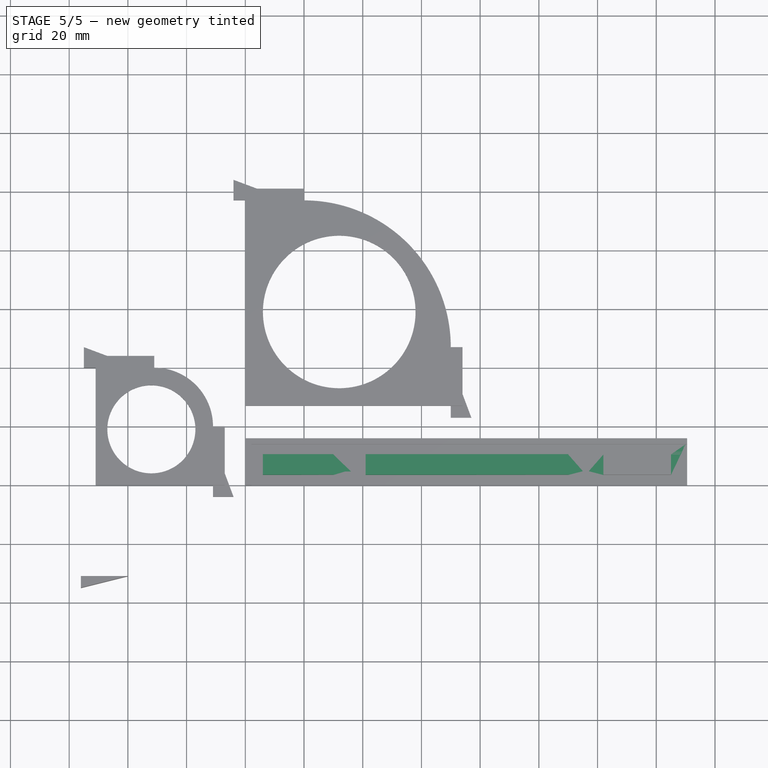
[diagram: stage 5 of 5 — top view after this stage's code; geometry added in this stage tinted green]
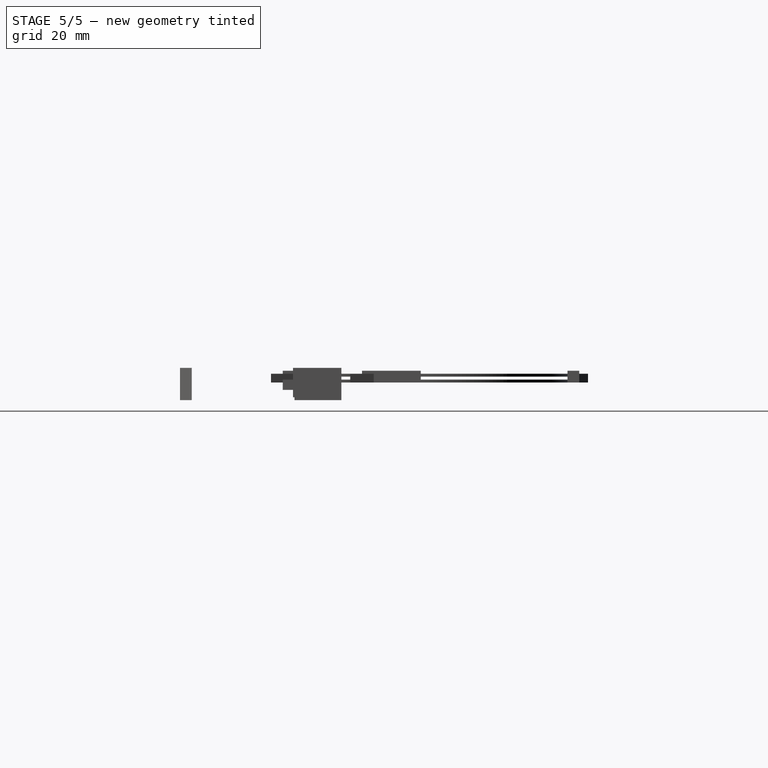
[diagram: stage 5 of 5 — right view after this stage's code; geometry added in this stage tinted green]
FEATURE [Part::Box] Box  label="Cube"
  AttacherType = Attacher::AttachEngine3D
  Height = 3
  Length = 150
  Width = 16
FEATURE [Part::Box] Box001  label="Cube001"
  AttacherType = Attacher::AttachEngine3D
  Height = 2
  Length = 148
  Placement = pos=(2,0,1) rot=(0,0,1;0rad)
  Width = 14
FEATURE [Part::Cut] Cut
  Base = -> Box
  Tool = -> Box001
FEATURE [Part::Box] Box002  label="Cube002"
  AttacherType = Attacher::AttachEngine3D
  Height = 10
  Length = 2
  Placement = pos=(34,0.7,-5) rot=(0,0,1;0rad)
  Width = 4
FEATURE [Part::Box] Box003  label="Cube003"
  AttacherType = Attacher::AttachEngine3D
  Height = 10
  Length = 2
  Placement = pos=(115,0.8,-5) rot=(0,0,1;0rad)
  Width = 4
FEATURE [Part::Box] Box004  label="Cube004"
  AttacherType = Attacher::AttachEngine3D
  Height = 10
  Length = 24
  Placement = pos=(6,3.5,-3) rot=(0,0,1;0rad)
  Width = 7
FEATURE [Part::Box] Box005  label="Cube005"
  AttacherType = Attacher::AttachEngine3D
  Height = 10
  Length = 69
  Placement = pos=(41,3.5,-3) rot=(0,0,1;0rad)
  Width = 7
FEATURE [Part::Box] Box006  label="Cube006"
  AttacherType = Attacher::AttachEngine3D
  Height = 10
  Length = 23
  Placement = pos=(122,3.5,-3) rot=(0,0,1;0rad)
  Width = 7
FEATURE [Part::Cut] Cut001
  Base = -> Cut
  Tool = -> Box002
FEATURE [Part::Cut] Cut002
  Base = -> Cut001
  Tool = -> Box003
FEATURE [Part::Cut] Cut003
  Base = -> Cut002
  Tool = -> Box004
FEATURE [Part::Cut] Cut004
  Base = -> Cut003
  Tool = -> Box005
FEATURE [Part::Cut] Cut005
  Base = -> Cut004
  Tool = -> Box006
FEATURE [Part::Box] Box007  label="Cube007"
  AttacherType = Attacher::AttachEngine3D
  Height = 1
  Length = 1
  Placement = pos=(34.5,1.2,0) rot=(0,0,1;0rad)
  Width = 3
FEATURE [Part::Box] Box008  label="Cube008"
  AttacherType = Attacher::AttachEngine3D
  Height = 1
  Length = 1
  Placement = pos=(115.5,1.3,0) rot=(0,0,1;0rad)
  Width = 3
FEATURE [Part::Box] Box009  label="Cube009"
  AttacherType = Attacher::AttachEngine3D
  Height = 0.5
  Length = 150
  Placement = pos=(0,0,-0.5) rot=(0,0,1;0rad)
  Width = 16
FEATURE [Part::MultiFuse] Fusion
  Shapes = -> [Box009,Box008,Box007]
FEATURE [Part::Box] Box010  label="Cube010"
  AttacherType = Attacher::AttachEngine3D
  Height = 10
  Length = 24
  Placement = pos=(6,3.5,-3) rot=(0,0,1;0rad)
  Width = 7
FEATURE [Part::Box] Box011  label="Cube011"
  AttacherType = Attacher::AttachEngine3D
  Height = 10
  Length = 69
  Placement = pos=(41,3.5,-3) rot=(0,0,1;0rad)
  Width = 7
FEATURE [Part::Box] Box012  label="Cube012"
  AttacherType = Attacher::AttachEngine3D
  Height = 10
  Length = 23
  Placement = pos=(122,3.5,-3) rot=(0,0,1;0rad)
  Width = 7
FEATURE [Part::Cut] Cut006
  Base = -> Fusion
  Tool = -> Box010
FEATURE [Part::Cut] Cut007
  Base = -> Cut006
  Tool = -> Box012
FEATURE [Part::Cut] Cut008
  Base = -> Cut007
  Tool = -> Box011
FEATURE [Part::MultiFuse] Fusion001
  Shapes = -> [Cut008,Cut005]
FEATURE [Part::Box] Box013  label="Cube013"
  AttacherType = Attacher::AttachEngine3D
  Height = 10
  Length = 24
  Placement = pos=(6,3.5,-3) rot=(0,0,1;0rad)
  Width = 7
FEATURE [Part::Box] Box017  label="Cube017"
  AttacherType = Attacher::AttachEngine3D
  Height = 10
  Length = 69
  Placement = pos=(41,3.5,-3) rot=(0,0,1;0rad)
  Width = 7
FEATURE [Part::Box] Box021  label="Cube021"
  AttacherType = Attacher::AttachEngine3D
  Height = 10
  Length = 23
  Placement = pos=(122,3.5,-3) rot=(0,0,1;0rad)
  Width = 7
FEATURE [Part::Box] Box022  label="Cube022"
  AttacherType = Attacher::AttachEngine3D
  Height = 1
  Length = 1
  Placement = pos=(115.5,1.3,0) rot=(0,0,1;0rad)
  Width = 3
FEATURE [Part::Box] Box023  label="Cube023"
  AttacherType = Attacher::AttachEngine3D
  Height = 10
  Length = 69
  Placement = pos=(41,3.5,-3) rot=(0,0,1;0rad)
  Width = 7
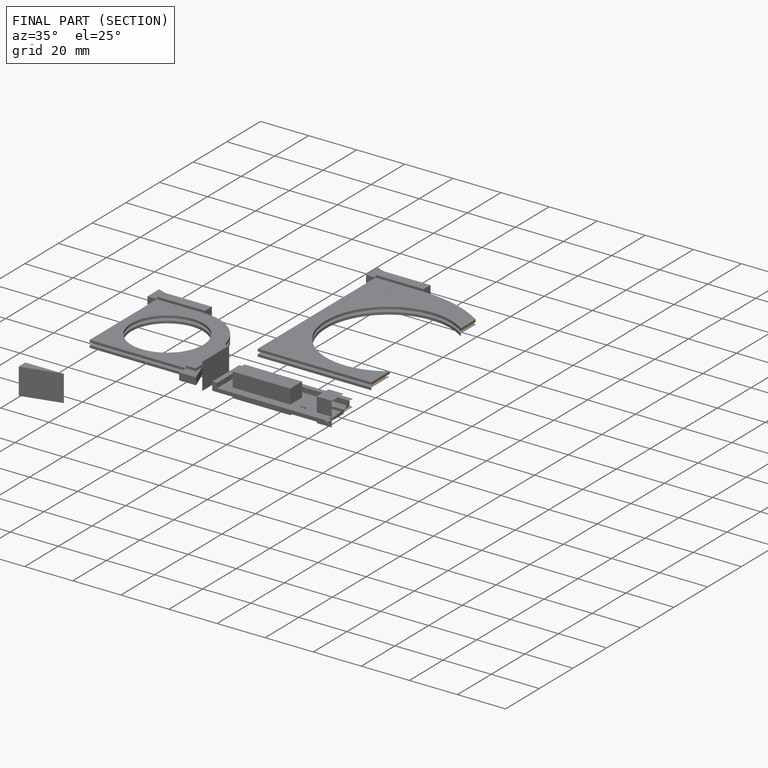
[diagram: finished part — half-section view (interior)]
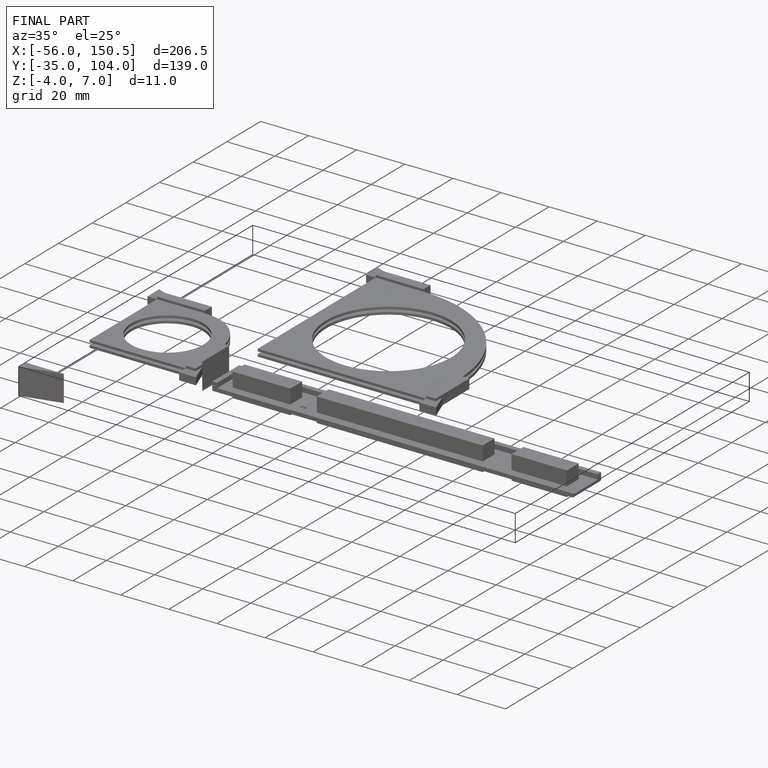
[diagram: finished part — iso view with bounding-box wireframe]
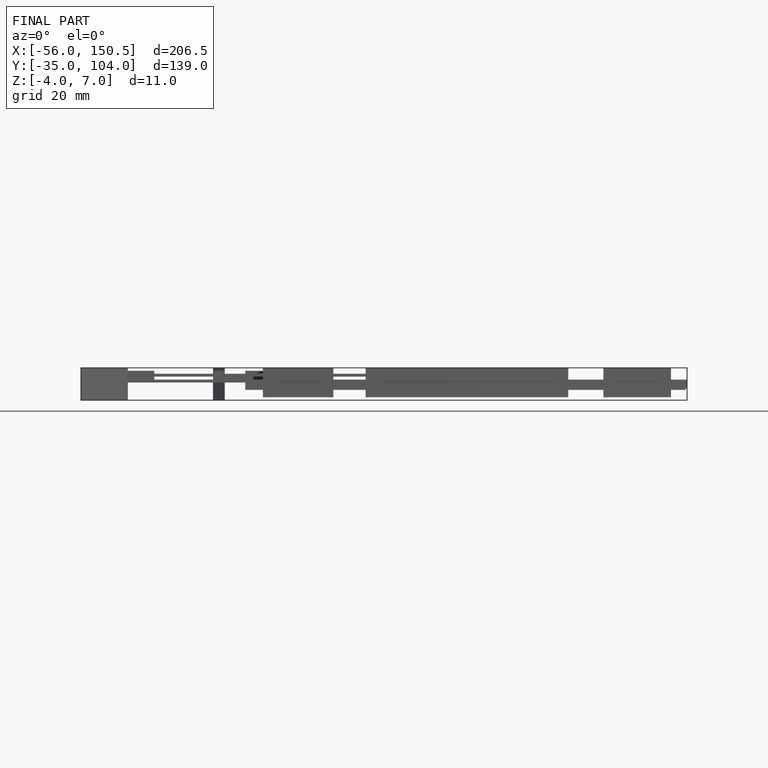
[diagram: finished part — front view with bounding-box wireframe]
